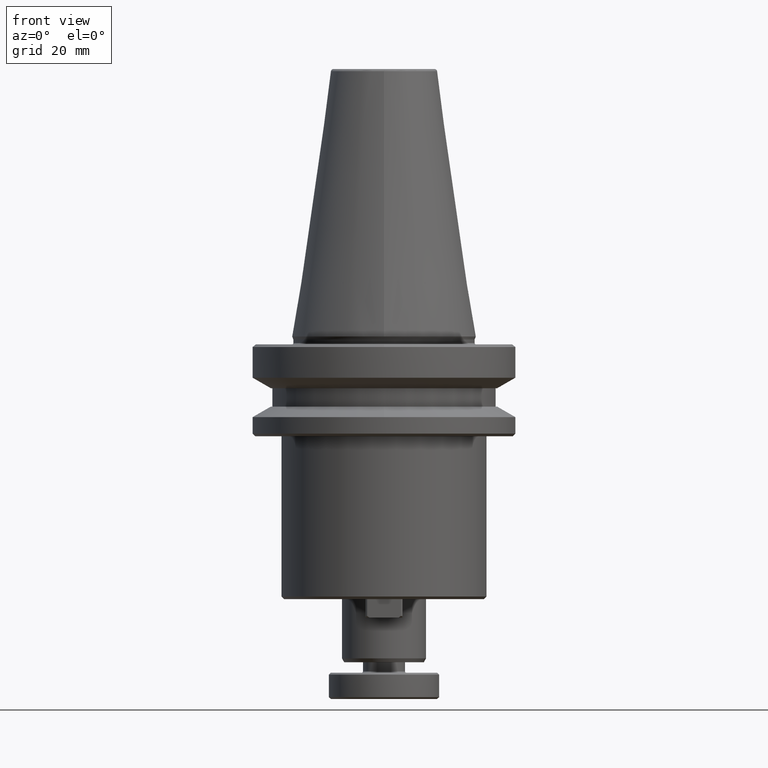
[diagram: clean part render]
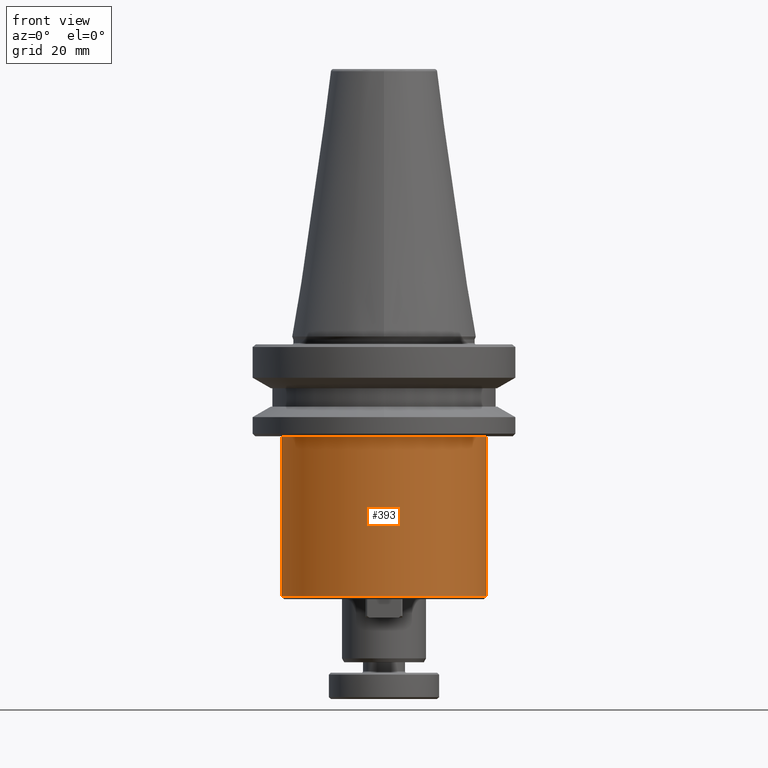
[diagram: same view with one face highlighted and labeled with its STEP entity id]
A machine part, front view. The second image highlights one B-rep face of the part: STEP entity #393.
In plain terms, the highlighted cylindrical surface (partial cylindrical patch) has radius 39 mm, axis along (0, 0, 1).
Its self-contained STEP definition (entity closure, byte-faithful):
#8 = VERTEX_POINT ( 'NONE', #2376 ) ;
#248 = FACE_OUTER_BOUND ( 'NONE', #1120, .T. ) ;
#316 = CARTESIAN_POINT ( 'NONE',  ( -38.99999999999999300, 4.776122516674677100E-015, -37.99999999999999300 ) ) ;
#342 = ORIENTED_EDGE ( 'NONE', *, *, #2482, .T. ) ;
#393 = ADVANCED_FACE ( 'NONE', ( #248 ), #1235, .T. ) ;
#627 = AXIS2_PLACEMENT_3D ( 'NONE', #1650, #1644, #1660 ) ;
#785 = LINE ( 'NONE', #2671, #2085 ) ;
#1105 = CARTESIAN_POINT ( 'NONE',  ( 39.00000000000000700, 0.0000000000000000000, -98.99999999999998600 ) ) ;
#1120 = EDGE_LOOP ( 'NONE', ( #2036, #1496, #2486, #342 ) ) ;
#1128 = DIRECTION ( 'NONE',  ( 1.000000000000000000, 0.0000000000000000000, 0.0000000000000000000 ) ) ;
#1131 = DIRECTION ( 'NONE',  ( -0.0000000000000000000, -0.0000000000000000000, -1.000000000000000000 ) ) ;
#1133 = CARTESIAN_POINT ( 'NONE',  ( 0.0000000000000000000, 0.0000000000000000000, -37.99999999999999300 ) ) ;
#1235 = CYLINDRICAL_SURFACE ( 'NONE', #627, 38.99999999999999300 ) ;
#1496 = ORIENTED_EDGE ( 'NONE', *, *, #2699, .T. ) ;
#1535 = CIRCLE ( 'NONE', #1552, 38.99999999999999300 ) ;
#1539 = VERTEX_POINT ( 'NONE', #316 ) ;
#1552 = AXIS2_PLACEMENT_3D ( 'NONE', #2390, #2195, #1909 ) ;
#1590 = CARTESIAN_POINT ( 'NONE',  ( -39.00000000000000700, 4.776122516674678700E-015, -98.99999999999998600 ) ) ;
#1644 = DIRECTION ( 'NONE',  ( 0.0000000000000000000, 0.0000000000000000000, 1.000000000000000000 ) ) ;
#1650 = CARTESIAN_POINT ( 'NONE',  ( 0.0000000000000000000, 0.0000000000000000000, 118.5507178974871000 ) ) ;
#1651 = CARTESIAN_POINT ( 'NONE',  ( 38.99999999999999300, 0.0000000000000000000, 118.5507178974871000 ) ) ;
#1660 = DIRECTION ( 'NONE',  ( 1.000000000000000000, 0.0000000000000000000, 0.0000000000000000000 ) ) ;
#1835 = DIRECTION ( 'NONE',  ( 0.0000000000000000000, 0.0000000000000000000, 1.000000000000000000 ) ) ;
#1909 = DIRECTION ( 'NONE',  ( 1.000000000000000000, 0.0000000000000000000, 0.0000000000000000000 ) ) ;
#2036 = ORIENTED_EDGE ( 'NONE', *, *, #2717, .F. ) ;
#2071 = DIRECTION ( 'NONE',  ( 0.0000000000000000000, 0.0000000000000000000, 1.000000000000000000 ) ) ;
#2085 = VECTOR ( 'NONE', #2071, 1000.000000000000000 ) ;
#2181 = EDGE_CURVE ( 'NONE', #2541, #8, #2739, .T. ) ;
#2195 = DIRECTION ( 'NONE',  ( 0.0000000000000000000, 0.0000000000000000000, 1.000000000000000000 ) ) ;
#2205 = VECTOR ( 'NONE', #1835, 1000.000000000000000 ) ;
#2348 = AXIS2_PLACEMENT_3D ( 'NONE', #1133, #1131, #1128 ) ;
#2376 = CARTESIAN_POINT ( 'NONE',  ( 38.99999999999999300, 0.0000000000000000000, -37.99999999999999300 ) ) ;
#2381 = VERTEX_POINT ( 'NONE', #1590 ) ;
#2390 = CARTESIAN_POINT ( 'NONE',  ( 0.0000000000000000000, 0.0000000000000000000, -98.99999999999998600 ) ) ;
#2482 = EDGE_CURVE ( 'NONE', #8, #1539, #2575, .T. ) ;
#2486 = ORIENTED_EDGE ( 'NONE', *, *, #2181, .T. ) ;
#2541 = VERTEX_POINT ( 'NONE', #1105 ) ;
#2575 = CIRCLE ( 'NONE', #2348, 38.99999999999999300 ) ;
#2671 = CARTESIAN_POINT ( 'NONE',  ( -38.99999999999999300, 4.776122516674677100E-015, 118.5507178974871000 ) ) ;
#2699 = EDGE_CURVE ( 'NONE', #2381, #2541, #1535, .T. ) ;
#2717 = EDGE_CURVE ( 'NONE', #2381, #1539, #785, .T. ) ;
#2739 = LINE ( 'NONE', #1651, #2205 ) ;